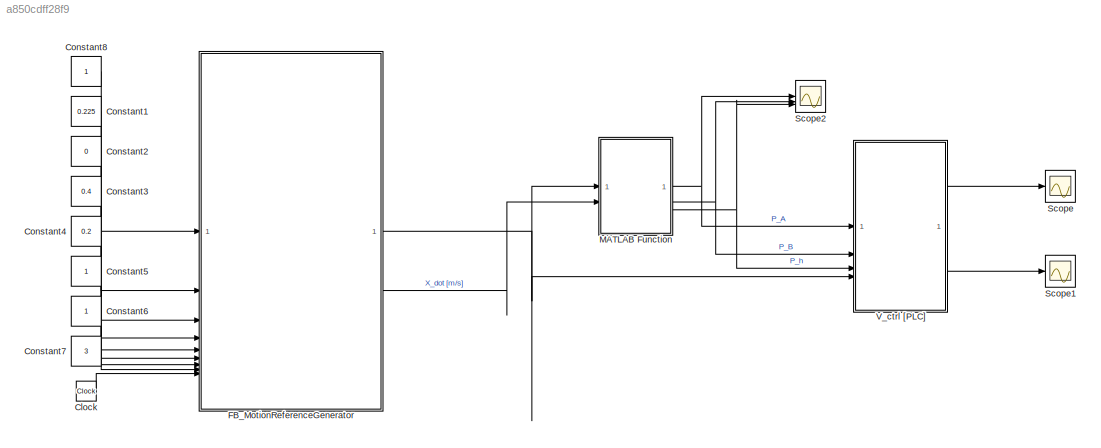
MODEL slx_a850cdff28f9
KIND model
CONFIG AbsTol = auto
CONFIG EnableMultiTasking = off
CONFIG FixedStep = 0.0001
CONFIG MaxStep = auto
CONFIG MinStep = auto
CONFIG RelTol = 1e-3
CONFIG SampleTimeConstraint = Unconstrained
CONFIG SolverName = FixedStepDiscrete
CONFIG StartTime = 0.0
CONFIG StopTime = 20
WORKSPACE source: MATLAB code (in-file)
WORKSPACE Amplitude = 0.35/2  (= 0.175)
BLOCK [Clock] Clock
BLOCK [Constant] Constant1
  Value = 0.225
BLOCK [Constant] Constant2
  Value = 0
BLOCK [Constant] Constant3
  Value = 0.4
BLOCK [Constant] Constant4
  Value = 0.2
BLOCK [Constant] Constant5
BLOCK [Constant] Constant6
BLOCK [Constant] Constant7
  Value = 3
BLOCK [Constant] Constant8
  OutDataTypeStr = boolean
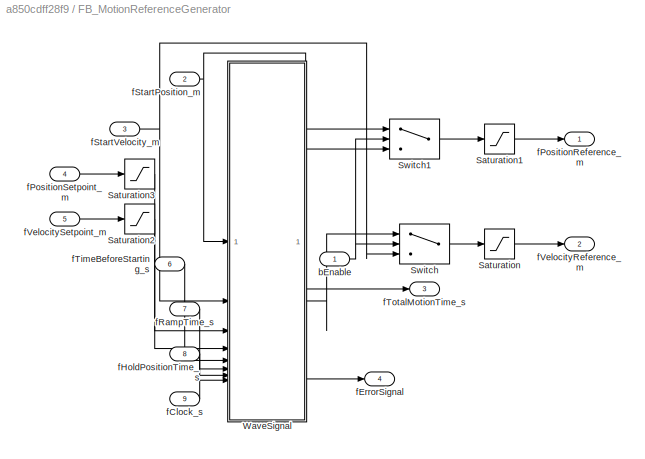
BLOCK [SubSystem] FB_MotionReferenceGenerator
  TreatAsAtomicUnit = on
  VariantControl = Ramp_Profile
BLOCK [Saturate] FB_MotionReferenceGenerator/Saturation
  LowerLimit = -0.05
  UpperLimit = 0.05
BLOCK [Saturate] FB_MotionReferenceGenerator/Saturation1
  LowerLimit = 0
  UpperLimit = 0.45
BLOCK [Saturate] FB_MotionReferenceGenerator/Saturation2
  LowerLimit = 0
  UpperLimit = 0.05
BLOCK [Saturate] FB_MotionReferenceGenerator/Saturation3
  LowerLimit = 0
  UpperLimit = 0.45
BLOCK [Switch] FB_MotionReferenceGenerator/Switch
  Criteria = u2 > Threshold
  InputSameDT = off
  SaturateOnIntegerOverflow = off
BLOCK [Switch] FB_MotionReferenceGenerator/Switch1
  Criteria = u2 > Threshold
  InputSameDT = off
  SaturateOnIntegerOverflow = off
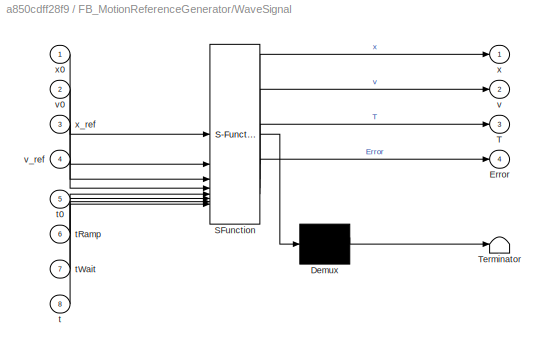
BLOCK [SubSystem] FB_MotionReferenceGenerator/WaveSignal
  ErrorFcn = Stateflow.Translate.translate
  PermitHierarchicalResolution = ExplicitOnly
  SFBlockType = MATLAB Function
  TreatAsAtomicUnit = on
BLOCK [Demux] FB_MotionReferenceGenerator/WaveSignal/ Demux 
  Outputs = 1
BLOCK [S-Function] FB_MotionReferenceGenerator/WaveSignal/ SFunction 
  EnableBusSupport = on
  FunctionName = sf_sfun
  PortCounts = [8 5]
  SFcnIsStateOwnerBlock = off
  SFunctionDeploymentMode = off
  Tag = Stateflow S-Function 16
BLOCK [Terminator] FB_MotionReferenceGenerator/WaveSignal/ Terminator 
BLOCK [Outport] FB_MotionReferenceGenerator/WaveSignal/Error
  Port = 4
  VectorParamsAs1DForOutWhenUnconnected = off
BLOCK [Outport] FB_MotionReferenceGenerator/WaveSignal/T
  Port = 3
  VectorParamsAs1DForOutWhenUnconnected = off
BLOCK [Inport] FB_MotionReferenceGenerator/WaveSignal/t
  Port = 8
BLOCK [Inport] FB_MotionReferenceGenerator/WaveSignal/t0
  Port = 5
BLOCK [Inport] FB_MotionReferenceGenerator/WaveSignal/tRamp
  Port = 6
BLOCK [Inport] FB_MotionReferenceGenerator/WaveSignal/tWait
  Port = 7
BLOCK [Outport] FB_MotionReferenceGenerator/WaveSignal/v
  Port = 2
  VectorParamsAs1DForOutWhenUnconnected = off
BLOCK [Inport] FB_MotionReferenceGenerator/WaveSignal/v0
  Port = 2
BLOCK [Inport] FB_MotionReferenceGenerator/WaveSignal/v_ref
  Port = 4
BLOCK [Outport] FB_MotionReferenceGenerator/WaveSignal/x
  VectorParamsAs1DForOutWhenUnconnected = off
BLOCK [Inport] FB_MotionReferenceGenerator/WaveSignal/x0
BLOCK [Inport] FB_MotionReferenceGenerator/WaveSignal/x_ref
  Port = 3
BLOCK [Inport] FB_MotionReferenceGenerator/bEnable
  OutDataTypeStr = boolean
BLOCK [Inport] FB_MotionReferenceGenerator/fClock_s
  Port = 9
BLOCK [Outport] FB_MotionReferenceGenerator/fErrorSignal
  Port = 4
  VectorParamsAs1DForOutWhenUnconnected = off
BLOCK [Inport] FB_MotionReferenceGenerator/fHoldPositionTime_s
  Port = 8
BLOCK [Outport] FB_MotionReferenceGenerator/fPositionReference_m
  VectorParamsAs1DForOutWhenUnconnected = off
BLOCK [Inport] FB_MotionReferenceGenerator/fPositionSetpoint_m
  Port = 4
BLOCK [Inport] FB_MotionReferenceGenerator/fRampTime_s
  Port = 7
BLOCK [Inport] FB_MotionReferenceGenerator/fStartPosition_m
  Port = 2
BLOCK [Inport] FB_MotionReferenceGenerator/fStartVelocity_m
  Port = 3
BLOCK [Inport] FB_MotionReferenceGenerator/fTimeBeforeStarting_s
  Port = 6
BLOCK [Outport] FB_MotionReferenceGenerator/fTotalMotionTime_s
  Port = 3
  VectorParamsAs1DForOutWhenUnconnected = off
BLOCK [Outport] FB_MotionReferenceGenerator/fVelocityReference_m
  Port = 2
  VectorParamsAs1DForOutWhenUnconnected = off
BLOCK [Inport] FB_MotionReferenceGenerator/fVelocitySetpoint_m
  Port = 5
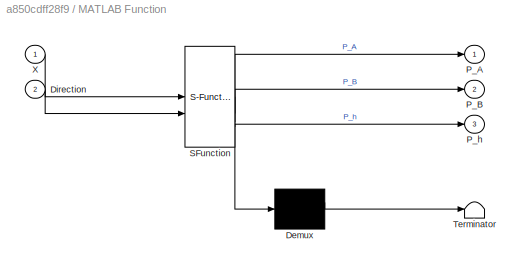
BLOCK [SubSystem] MATLAB Function
  ErrorFcn = Stateflow.Translate.translate
  PermitHierarchicalResolution = ExplicitOnly
  SFBlockType = MATLAB Function
  TreatAsAtomicUnit = on
BLOCK [Demux] MATLAB Function/ Demux 
  Outputs = 1
BLOCK [S-Function] MATLAB Function/ SFunction 
  EnableBusSupport = on
  FunctionName = sf_sfun
  PortCounts = [2 4]
  SFcnIsStateOwnerBlock = off
  SFunctionDeploymentMode = off
  Tag = Stateflow S-Function 1
BLOCK [Terminator] MATLAB Function/ Terminator 
BLOCK [Inport] MATLAB Function/Direction
  Port = 2
BLOCK [Outport] MATLAB Function/P_A
BLOCK [Outport] MATLAB Function/P_B
  Port = 2
BLOCK [Outport] MATLAB Function/P_h
  Port = 3
BLOCK [Inport] MATLAB Function/X
BLOCK [Scope] Scope
  Floating = off
  NumInputPorts = 1
  ScopeSpecificationString = Simulink.scopes.TimeScopeBlockCfg('CurrentConfiguration', extmgr.ConfigurationSet(extmgr.Configuration('Core','General UI',true),extmgr.Configuration('Core','Source UI',true),extmgr.Configuration('Sources','WiredSimulink',true),extmgr.Configuration('Visuals','Time Domain',true,'SerializedDisplays',{struct('MinYLimReal','-7806.09646','MaxYLimReal','70244.4935','YLabelReal','','MinYLimMag','  0.0000...<+1499ch>
BLOCK [Scope] Scope1
  Floating = off
  NumInputPorts = 1
  ScopeSpecificationString = Simulink.scopes.TimeScopeBlockCfg('CurrentConfiguration', extmgr.ConfigurationSet(extmgr.Configuration('Core','General UI',true),extmgr.Configuration('Core','Source UI',true),extmgr.Configuration('Sources','WiredSimulink',true,'DataLoggingVariableName','ScopeData1'),extmgr.Configuration('Visuals','Time Domain',true,'SerializedDisplays',{struct('MinYLimReal','-9.20635','MaxYLimReal','12.05626','YLa...<+1539ch>
BLOCK [Scope] Scope2
  Floating = off
  NumInputPorts = 3
  ScopeSpecificationString = Simulink.scopes.TimeScopeBlockCfg('CurrentConfiguration', extmgr.ConfigurationSet(extmgr.Configuration('Core','General UI',true),extmgr.Configuration('Core','Source UI',true),extmgr.Configuration('Sources','WiredSimulink',true,'DataLoggingVariableName','ScopeData2'),extmgr.Configuration('Visuals','Time Domain',true,'SerializedDisplays',{struct('MinYLimReal','3243881.11888','MaxYLimReal','5840034.9...<+1580ch>
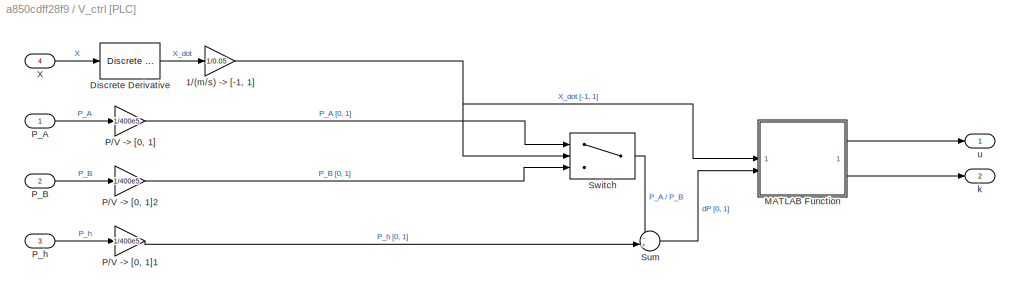
BLOCK [SubSystem] V_ctrl [PLC]
  TreatAsAtomicUnit = on
BLOCK [Gain] V_ctrl [PLC]/1//(m//s) -> [-1, 1]
  Gain = 1/0.05
  OutDataTypeStr = double
BLOCK [Reference] V_ctrl [PLC]/Discrete Derivative  REF=simulink/Quick Insert/Discrete/Discrete Derivative
  SourceBlock = simulink/Quick Insert/Discrete/Discrete Derivative
  SourceType = Discrete Derivative
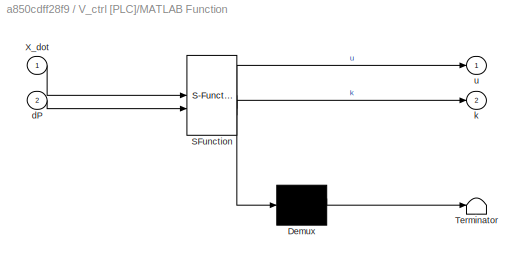
BLOCK [SubSystem] V_ctrl [PLC]/MATLAB Function
  ErrorFcn = Stateflow.Translate.translate
  PermitHierarchicalResolution = ExplicitOnly
  SFBlockType = MATLAB Function
  TreatAsAtomicUnit = on
BLOCK [Demux] V_ctrl [PLC]/MATLAB Function/ Demux 
  Outputs = 1
BLOCK [S-Function] V_ctrl [PLC]/MATLAB Function/ SFunction 
  EnableBusSupport = on
  FunctionName = sf_sfun
  PortCounts = [2 3]
  SFcnIsStateOwnerBlock = off
  SFunctionDeploymentMode = off
  Tag = Stateflow S-Function 2
BLOCK [Terminator] V_ctrl [PLC]/MATLAB Function/ Terminator 
BLOCK [Inport] V_ctrl [PLC]/MATLAB Function/X_dot
BLOCK [Inport] V_ctrl [PLC]/MATLAB Function/dP
  Port = 2
BLOCK [Outport] V_ctrl [PLC]/MATLAB Function/k
  Port = 2
BLOCK [Outport] V_ctrl [PLC]/MATLAB Function/u
BLOCK [Gain] V_ctrl [PLC]/P//V -> [0, 1]
  Gain = 1/400e5
  OutDataTypeStr = double
BLOCK [Gain] V_ctrl [PLC]/P//V -> [0, 1]1
  Gain = 1/400e5
  OutDataTypeStr = double
BLOCK [Gain] V_ctrl [PLC]/P//V -> [0, 1]2
  Gain = 1/400e5
  OutDataTypeStr = double
BLOCK [Inport] V_ctrl [PLC]/P_A
BLOCK [Inport] V_ctrl [PLC]/P_B
  Port = 2
BLOCK [Inport] V_ctrl [PLC]/P_h
  Port = 3
BLOCK [Sum] V_ctrl [PLC]/Sum
  Inputs = -+|
BLOCK [Switch] V_ctrl [PLC]/Switch
  Criteria = u2 > Threshold
  InputSameDT = off
  SaturateOnIntegerOverflow = off
BLOCK [Inport] V_ctrl [PLC]/X
  Port = 4
BLOCK [Outport] V_ctrl [PLC]/k
  Port = 2
BLOCK [Outport] V_ctrl [PLC]/u
LINE Clock:1 -> FB_MotionReferenceGenerator:9
LINE Constant1:1 -> FB_MotionReferenceGenerator:2
LINE Constant2:1 -> FB_MotionReferenceGenerator:3
LINE Constant3:1 -> FB_MotionReferenceGenerator:4
LINE Constant4:1 -> FB_MotionReferenceGenerator:5
LINE Constant5:1 -> FB_MotionReferenceGenerator:6
LINE Constant6:1 -> FB_MotionReferenceGenerator:7
LINE Constant7:1 -> FB_MotionReferenceGenerator:8
LINE Constant8:1 -> FB_MotionReferenceGenerator:1
LINE FB_MotionReferenceGenerator/Saturation1:1 -> FB_MotionReferenceGenerator/fPositionReference_m:1
LINE FB_MotionReferenceGenerator/Saturation2:1 -> FB_MotionReferenceGenerator/WaveSignal:4
LINE FB_MotionReferenceGenerator/Saturation3:1 -> FB_MotionReferenceGenerator/WaveSignal:3
LINE FB_MotionReferenceGenerator/Saturation:1 -> FB_MotionReferenceGenerator/fVelocityReference_m:1
LINE FB_MotionReferenceGenerator/Switch1:1 -> FB_MotionReferenceGenerator/Saturation1:1
LINE FB_MotionReferenceGenerator/Switch:1 -> FB_MotionReferenceGenerator/Saturation:1
LINE FB_MotionReferenceGenerator/WaveSignal:1 -> FB_MotionReferenceGenerator/Switch1:1
LINE FB_MotionReferenceGenerator/WaveSignal:2 -> FB_MotionReferenceGenerator/Switch:1
LINE FB_MotionReferenceGenerator/WaveSignal:3 -> FB_MotionReferenceGenerator/fTotalMotionTime_s:1
LINE FB_MotionReferenceGenerator/WaveSignal:4 -> FB_MotionReferenceGenerator/fErrorSignal:1
NET FB_MotionReferenceGenerator/bEnable:1 -> FB_MotionReferenceGenerator/Switch1:2, FB_MotionReferenceGenerator/Switch:2
LINE FB_MotionReferenceGenerator/fClock_s:1 -> FB_MotionReferenceGenerator/WaveSignal:8
LINE FB_MotionReferenceGenerator/fHoldPositionTime_s:1 -> FB_MotionReferenceGenerator/WaveSignal:7
LINE FB_MotionReferenceGenerator/fPositionSetpoint_m:1 -> FB_MotionReferenceGenerator/Saturation3:1
LINE FB_MotionReferenceGenerator/fRampTime_s:1 -> FB_MotionReferenceGenerator/WaveSignal:6
NET FB_MotionReferenceGenerator/fStartPosition_m:1 -> FB_MotionReferenceGenerator/Switch1:3, FB_MotionReferenceGenerator/WaveSignal:1
NET FB_MotionReferenceGenerator/fStartVelocity_m:1 -> FB_MotionReferenceGenerator/Switch:3, FB_MotionReferenceGenerator/WaveSignal:2
LINE FB_MotionReferenceGenerator/fTimeBeforeStarting_s:1 -> FB_MotionReferenceGenerator/WaveSignal:5
LINE FB_MotionReferenceGenerator/fVelocitySetpoint_m:1 -> FB_MotionReferenceGenerator/Saturation2:1
NET FB_MotionReferenceGenerator:1 -> MATLAB Function:1, V_ctrl [PLC]:4
LINE FB_MotionReferenceGenerator:2 -> MATLAB Function:2
NET MATLAB Function:1 -> Scope2:1, V_ctrl [PLC]:1
NET MATLAB Function:2 -> Scope2:2, V_ctrl [PLC]:2
NET MATLAB Function:3 -> Scope2:3, V_ctrl [PLC]:3
NET V_ctrl [PLC]/1//(m//s) -> [-1, 1]:1 -> V_ctrl [PLC]/MATLAB Function:1, V_ctrl [PLC]/Switch:2
LINE V_ctrl [PLC]/Discrete Derivative:1 -> V_ctrl [PLC]/1//(m//s) -> [-1, 1]:1
LINE V_ctrl [PLC]/MATLAB Function:1 -> V_ctrl [PLC]/u:1
LINE V_ctrl [PLC]/MATLAB Function:2 -> V_ctrl [PLC]/k:1
LINE V_ctrl [PLC]/P//V -> [0, 1]1:1 -> V_ctrl [PLC]/Sum:2
LINE V_ctrl [PLC]/P//V -> [0, 1]2:1 -> V_ctrl [PLC]/Switch:3
LINE V_ctrl [PLC]/P//V -> [0, 1]:1 -> V_ctrl [PLC]/Switch:1
LINE V_ctrl [PLC]/P_A:1 -> V_ctrl [PLC]/P//V -> [0, 1]:1
LINE V_ctrl [PLC]/P_B:1 -> V_ctrl [PLC]/P//V -> [0, 1]2:1
LINE V_ctrl [PLC]/P_h:1 -> V_ctrl [PLC]/P//V -> [0, 1]1:1
LINE V_ctrl [PLC]/Sum:1 -> V_ctrl [PLC]/MATLAB Function:2
LINE V_ctrl [PLC]/Switch:1 -> V_ctrl [PLC]/Sum:1
LINE V_ctrl [PLC]/X:1 -> V_ctrl [PLC]/Discrete Derivative:1
LINE V_ctrl [PLC]:1 -> Scope:1
LINE V_ctrl [PLC]:2 -> Scope1:1
note: NET lines group one-source signal fan-out (src -> all destinations, sorted); 1:1 wires keep LINE
CHART MATLAB Function states=1 transitions=1
  STATE_LABEL 'eML_blk_kernel()'
  STATE_LABEL 'SCRIPT:\nfunction [P_A, P_B, P_h] = fcn(X, Direction)\n\n%% fyske_parametere.m\n% Constants\nL1 = 3.625;\nL4 = 0.229;\nLg4x = L1-L4/2;\nLg4y = 0.08157;\nabx = 0.550;\naby = -0.130;\ng = 9.81;\nG1 =100*g;\nG4 = (4*76+16)*g;\nCy = -1.055;\nCx = 0.420;\nang_CA = atan2(Cy,Cx);\nang_k = atan2(aby,abx);\nb = abs(sqrt(Cy^2+Cx^2));\nc = abs(sqrt(abx^2+aby^2));\n% Calculations\n%syms Ax Ay P gamma beta ang_C ang_AB r_cb r_ab L...<+1232ch>'
CHART V_ctrl [PLC]/MATLAB Function states=1 transitions=1
  STATE_LABEL 'eML_blk_kernel()'
  STATE_LABEL 'SCRIPT:\nfunction [u,k] = fcn(X_dot, dP)\n\nphi = 0.7130;\nA = 33.1/100^2; % Area\nBW = 0.8; % Bandwidth\nSpoolTravel = 7; % Maximum Spool Travel\na = (SpoolTravel-BW)/25; % Valve Slope Characteristic [mm/(L/min)]\n\n\nif X_dot > 0\n\n    Q = X_dot * A; % Wanted Flow\n\nelseif X_dot < 0\n\n    Q = X_dot * (A*phi); % Wanted Flow\n\nelse\n\n    Q = 0; % Wanted Flow\n\nend\n\n\ndP_0 = 7e5/400e5; % Pressure drop with compansa...<+149ch>'
CHART FB_MotionReferenceGenerator/WaveSignal states=1 transitions=1
  STATE_LABEL 'eML_blk_kernel()'
  STATE_LABEL 'SCRIPT:\nfunction [x,v,T, Error] = fcn(x0,v0, x_ref,v_ref,t0,tRamp,tWait,t)\nx_SP = x_ref - x0;\nvs=v_ref;\nslopeExt=v0-vs;\nslopeRetr=-vs-v0;\n\nas = vs/tRamp;\ns_acc=(vs^2-v0^2)/as;\n\ntHold=(x_SP-s_acc)/vs;\n\nif tHold < 0 \nError = 1;\nelse \nError = 0;\nend\n\nt1=tRamp;\nt2=tHold; \nt3=tRamp;\nt4=tWait;\nt5=t1;\nt6=t2;\nt7=t3;\n\nx = x0;\nx1 = x0 + v0*((t0+t1)-t0)-(slopeExt/t1)*((t0+t1)-t0)^2/2;\nx2 = x1 + vs*((t0+t1+t2...<+1188ch>'
CHART  states=0 transitions=0
CHART  states=0 transitions=0
CHART  states=0 transitions=0
